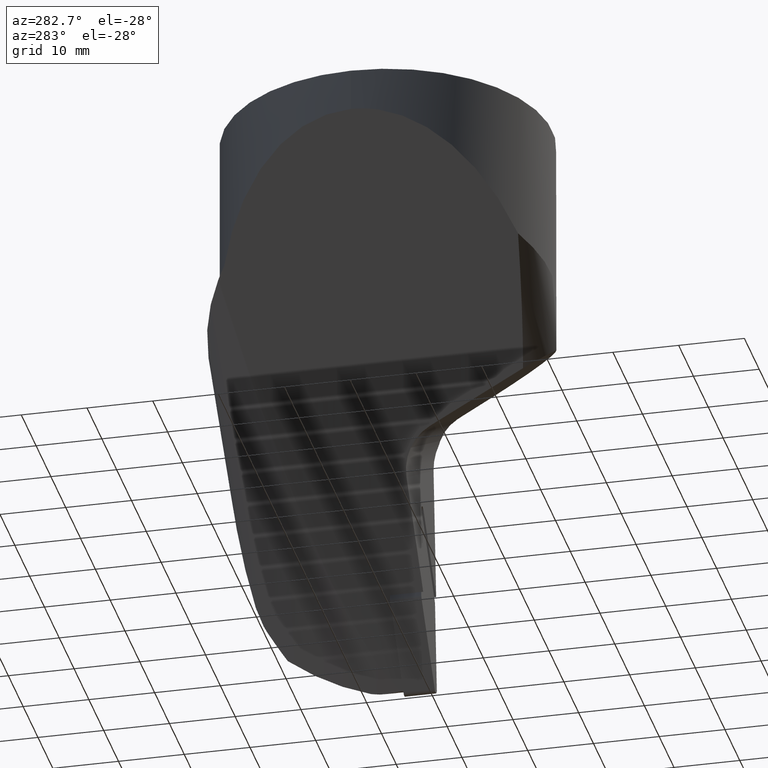
[diagram: clean part render]
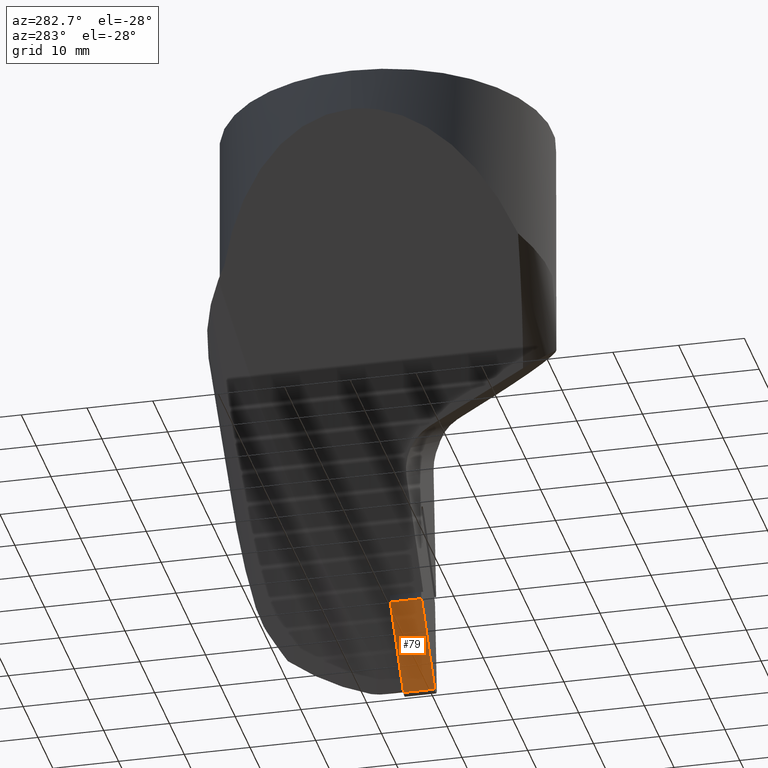
[diagram: same view with one face highlighted and labeled with its STEP entity id]
A machine part, auxiliary view. The second image highlights one B-rep face of the part: STEP entity #79.
In plain terms, the highlighted planar face has unit normal (-0.766, 0, -0.6428).
Its self-contained STEP definition (entity closure, byte-faithful):
#79=ADVANCED_FACE('',(#116),#117,.T.);
#116=FACE_OUTER_BOUND('',#204,.T.);
#117=PLANE('',#205);
#204=EDGE_LOOP('',(#333,#334,#335,#336));
#205=AXIS2_PLACEMENT_3D('',#337,#338,#339);
#333=ORIENTED_EDGE('',*,*,#588,.T.);
#334=ORIENTED_EDGE('',*,*,#589,.F.);
#335=ORIENTED_EDGE('',*,*,#590,.T.);
#336=ORIENTED_EDGE('',*,*,#586,.T.);
#337=CARTESIAN_POINT('',(31.5921468528075,4.76,-74.6028983969518));
#338=DIRECTION('',(-0.766044443118969,0.0,-0.64278760968655));
#339=DIRECTION('',(-0.64278760968655,0.0,0.766044443118969));
#586=EDGE_CURVE('',#685,#683,#686,.T.);
#588=EDGE_CURVE('',#683,#688,#689,.T.);
#589=EDGE_CURVE('',#690,#688,#691,.T.);
#590=EDGE_CURVE('',#690,#685,#692,.T.);
#683=VERTEX_POINT('',#841);
#685=VERTEX_POINT('',#843);
#686=LINE('',#844,#845);
#688=VERTEX_POINT('',#847);
#689=LINE('',#848,#849);
#690=VERTEX_POINT('',#850);
#691=LINE('',#851,#852);
#692=LINE('',#853,#854);
#841=CARTESIAN_POINT('',(31.5921468528075,-4.9960036108132E-015,-74.6028983969518));
#843=CARTESIAN_POINT('',(31.5921468528075,4.76,-74.6028983969518));
#844=CARTESIAN_POINT('',(31.5921468528075,4.76,-74.6028983969518));
#845=VECTOR('',#1161,10.0);
#847=CARTESIAN_POINT('',(22.7040456597624,-4.9960036108132E-015,-64.0104718687997));
#848=CARTESIAN_POINT('',(22.7040456597624,-3.88578058618805E-015,-64.0104718687997));
#849=VECTOR('',#1165,10.0);
#850=CARTESIAN_POINT('',(22.7040456597624,4.76,-64.0104718687997));
#851=CARTESIAN_POINT('',(22.7040456597624,4.76,-64.0104718687997));
#852=VECTOR('',#1166,10.0);
#853=CARTESIAN_POINT('',(22.7040456597624,4.76,-64.0104718687997));
#854=VECTOR('',#1167,10.0);
#1161=DIRECTION('',(0.0,-1.0,0.0));
#1165=DIRECTION('',(-0.64278760968655,-6.23244910470726E-033,0.766044443118969));
#1166=DIRECTION('',(0.0,-1.0,0.0));
#1167=DIRECTION('',(0.64278760968655,6.23244910470726E-033,-0.766044443118969));